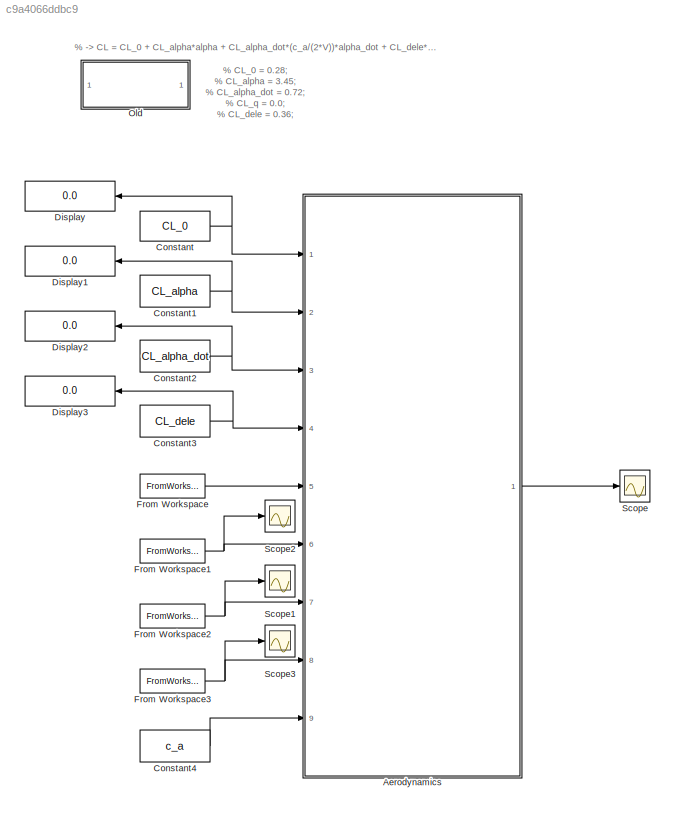
MODEL slx_c9a4066ddbc9
KIND model
CONFIG AbsTol = auto
CONFIG FixedStep = 0.01
CONFIG MaxStep = auto
CONFIG MinStep = auto
CONFIG RelTol = 1e-3
CONFIG SampleTimeConstraint = Unconstrained
CONFIG Solver = ode4
CONFIG SolverMode = Auto
CONFIG SolverName = ode4
CONFIG StartTime = 0.0
CONFIG StopTime = 10.0
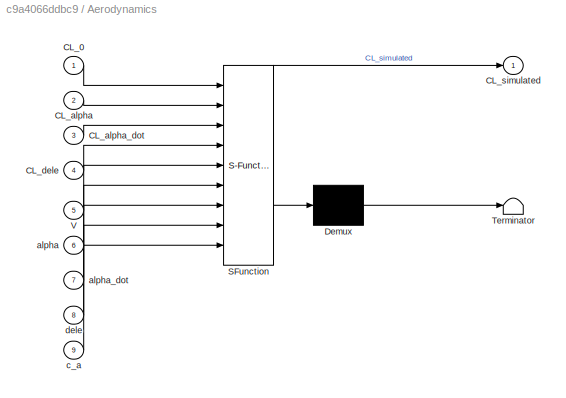
BLOCK [SubSystem] Aerodynamics
  ErrorFcn = Stateflow.Translate.translate
  PermitHierarchicalResolution = ExplicitOnly
  Ports = [9, 1]
  RequestExecContextInheritance = off
  SFBlockType = MATLAB Function
  TreatAsAtomicUnit = on
  Variant = off
BLOCK [Demux] Aerodynamics/ Demux 
  Outputs = 1
  Ports = [1, 1]
BLOCK [S-Function] Aerodynamics/ SFunction 
  EnableBusSupport = on
  FunctionName = sf_sfun
  PortCounts = [9 2]
  Ports = [9, 2]
  SFunctionDeploymentMode = off
  Tag = Stateflow S-Function Parameter_estimation_using_simulink 2
BLOCK [Terminator] Aerodynamics/ Terminator 
BLOCK [Inport] Aerodynamics/CL_0
  IconDisplay = Port number
BLOCK [Inport] Aerodynamics/CL_alpha
  IconDisplay = Port number
  Port = 2
BLOCK [Inport] Aerodynamics/CL_alpha_dot
  IconDisplay = Port number
  Port = 3
BLOCK [Inport] Aerodynamics/CL_dele
  IconDisplay = Port number
  Port = 4
BLOCK [Outport] Aerodynamics/CL_simulated
  IconDisplay = Port number
BLOCK [Inport] Aerodynamics/V
  IconDisplay = Port number
  Port = 5
BLOCK [Inport] Aerodynamics/alpha
  IconDisplay = Port number
  Port = 6
BLOCK [Inport] Aerodynamics/alpha_dot
  IconDisplay = Port number
  Port = 7
BLOCK [Inport] Aerodynamics/c_a
  IconDisplay = Port number
  Port = 9
BLOCK [Inport] Aerodynamics/dele
  IconDisplay = Port number
  Port = 8
BLOCK [Constant] Constant
  Value = CL_0
BLOCK [Constant] Constant1
  Value = CL_alpha
BLOCK [Constant] Constant2
  Value = CL_alpha_dot
BLOCK [Constant] Constant3
  Value = CL_dele
BLOCK [Constant] Constant4
  Value = c_a
BLOCK [Display] Display
  Decimation = 1
  Ports = [1]
BLOCK [Display] Display1
  Decimation = 1
  Ports = [1]
BLOCK [Display] Display2
  Decimation = 1
  Ports = [1]
BLOCK [Display] Display3
  Decimation = 1
  Ports = [1]
BLOCK [FromWorkspace] From Workspace
  SampleTime = 0
  VariableName = V_sim
  ZeroCross = on
BLOCK [FromWorkspace] From Workspace1
  SampleTime = 0
  VariableName = alpha_rad_sim
  ZeroCross = on
BLOCK [FromWorkspace] From Workspace2
  SampleTime = 0
  VariableName = alpha_dot_sim
  ZeroCross = on
BLOCK [FromWorkspace] From Workspace3
  SampleTime = 0
  VariableName = dele_sim
  ZeroCross = on
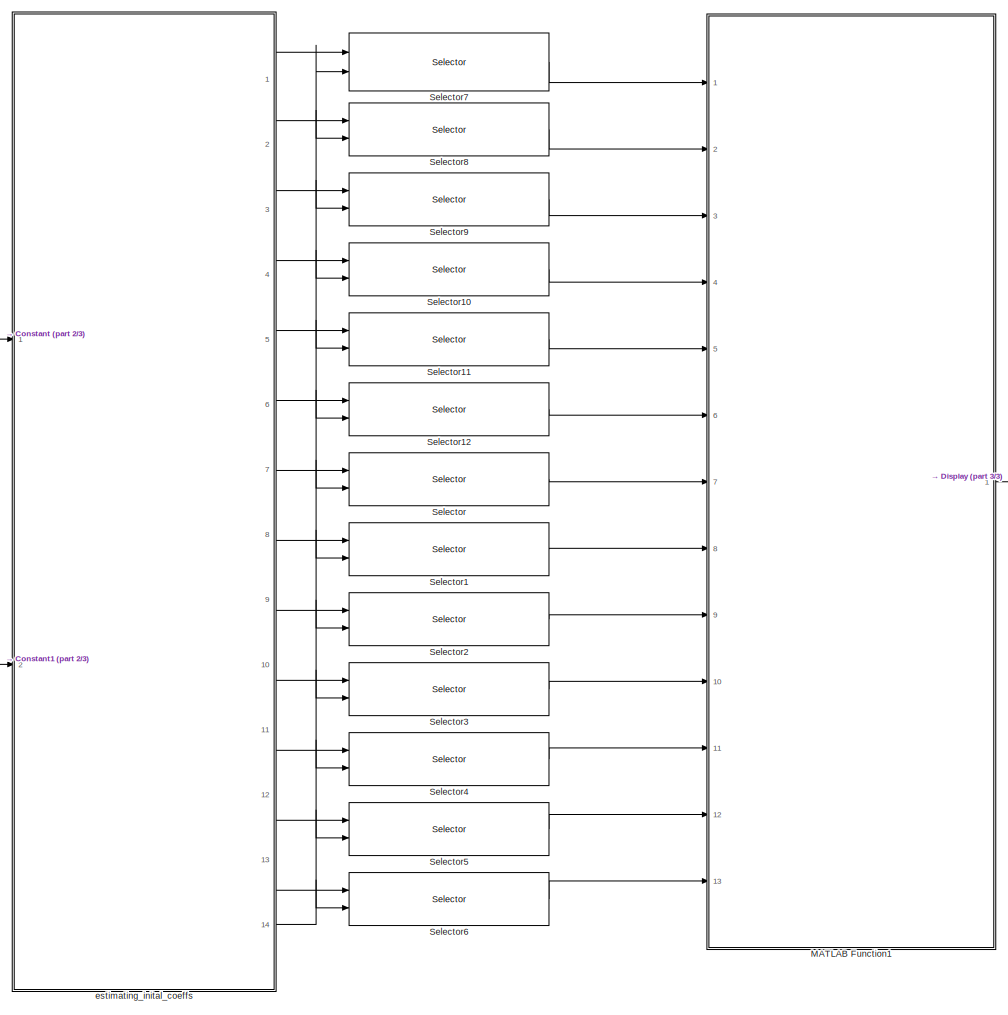
[diagram: Old - part 1/3, center side, full height]
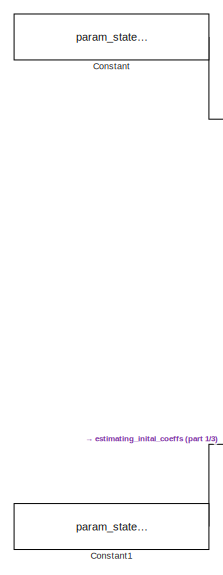
[diagram: Old - part 2/3, middle left region]
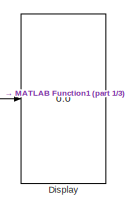
[diagram: Old - part 3/3, middle right region]
BLOCK [SubSystem] Old
  Commented = on
  Ports = []
  RequestExecContextInheritance = off
  Variant = off
BLOCK [Constant] Old/Constant
  Value = param_states.Data
  VectorParams1D = off
BLOCK [Constant] Old/Constant1
  Value = param_states.Time
  VectorParams1D = off
BLOCK [Display] Old/Display
  Decimation = 1
  Ports = [1]
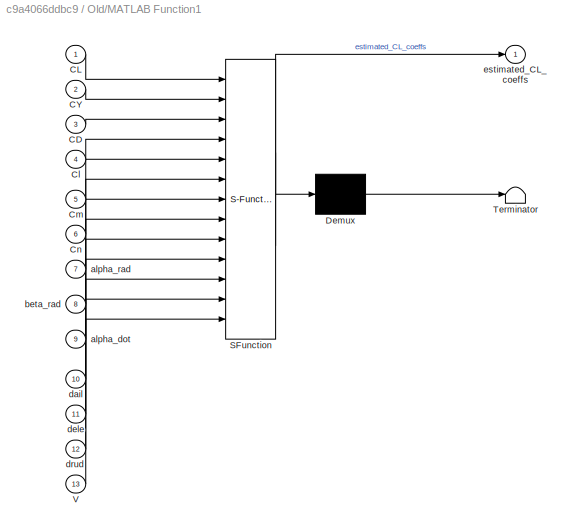
BLOCK [SubSystem] Old/MATLAB Function1
  Commented = on
  ErrorFcn = Stateflow.Translate.translate
  PermitHierarchicalResolution = ExplicitOnly
  Ports = [13, 1]
  RequestExecContextInheritance = off
  SFBlockType = MATLAB Function
  TreatAsAtomicUnit = on
  Variant = off
BLOCK [Demux] Old/MATLAB Function1/ Demux 
  Outputs = 1
  Ports = [1, 1]
BLOCK [S-Function] Old/MATLAB Function1/ SFunction 
  EnableBusSupport = on
  FunctionName = sf_sfun
  PortCounts = [13 2]
  Ports = [13, 2]
  SFunctionDeploymentMode = off
  Tag = Stateflow S-Function Parameter_estimation_using_simulink 3
BLOCK [Terminator] Old/MATLAB Function1/ Terminator 
BLOCK [Inport] Old/MATLAB Function1/CD
  IconDisplay = Port number
  Port = 3
BLOCK [Inport] Old/MATLAB Function1/CL
  IconDisplay = Port number
BLOCK [Inport] Old/MATLAB Function1/CY
  IconDisplay = Port number
  Port = 2
BLOCK [Inport] Old/MATLAB Function1/Cl
  IconDisplay = Port number
  Port = 4
BLOCK [Inport] Old/MATLAB Function1/Cm
  IconDisplay = Port number
  Port = 5
BLOCK [Inport] Old/MATLAB Function1/Cn
  IconDisplay = Port number
  Port = 6
BLOCK [Inport] Old/MATLAB Function1/V
  IconDisplay = Port number
  Port = 13
BLOCK [Inport] Old/MATLAB Function1/alpha_dot
  IconDisplay = Port number
  Port = 9
BLOCK [Inport] Old/MATLAB Function1/alpha_rad
  IconDisplay = Port number
  Port = 7
BLOCK [Inport] Old/MATLAB Function1/beta_rad
  IconDisplay = Port number
  Port = 8
BLOCK [Inport] Old/MATLAB Function1/dail
  IconDisplay = Port number
  Port = 10
BLOCK [Inport] Old/MATLAB Function1/dele
  IconDisplay = Port number
  Port = 11
BLOCK [Inport] Old/MATLAB Function1/drud
  IconDisplay = Port number
  Port = 12
BLOCK [Outport] Old/MATLAB Function1/estimated_CL_coeffs
  IconDisplay = Port number
BLOCK [Selector] Old/Selector
  Commented = on
  IndexOptions = Index vector (port)
  Indices = [1 3]
  InputPortWidth = 3
  OutputSizes = 1
  Ports = [2, 1]
BLOCK [Selector] Old/Selector1
  Commented = on
  IndexOptions = Index vector (port)
  Indices = [1 3]
  InputPortWidth = 3
  OutputSizes = 1
  Ports = [2, 1]
BLOCK [Selector] Old/Selector10
  Commented = on
  IndexOptions = Index vector (port)
  Indices = [1 3]
  InputPortWidth = 3
  OutputSizes = 1
  Ports = [2, 1]
BLOCK [Selector] Old/Selector11
  Commented = on
  IndexOptions = Index vector (port)
  Indices = [1 3]
  InputPortWidth = 3
  OutputSizes = 1
  Ports = [2, 1]
BLOCK [Selector] Old/Selector12
  Commented = on
  IndexOptions = Index vector (port)
  Indices = [1 3]
  InputPortWidth = 3
  OutputSizes = 1
  Ports = [2, 1]
BLOCK [Selector] Old/Selector2
  Commented = on
  IndexOptions = Index vector (port)
  Indices = [1 3]
  InputPortWidth = 3
  OutputSizes = 1
  Ports = [2, 1]
BLOCK [Selector] Old/Selector3
  Commented = on
  IndexOptions = Index vector (port)
  Indices = [1 3]
  InputPortWidth = 3
  OutputSizes = 1
  Ports = [2, 1]
BLOCK [Selector] Old/Selector4
  Commented = on
  IndexOptions = Index vector (port)
  Indices = [1 3]
  InputPortWidth = 3
  OutputSizes = 1
  Ports = [2, 1]
BLOCK [Selector] Old/Selector5
  Commented = on
  IndexOptions = Index vector (port)
  Indices = [1 3]
  InputPortWidth = 3
  OutputSizes = 1
  Ports = [2, 1]
BLOCK [Selector] Old/Selector6
  Commented = on
  IndexOptions = Index vector (port)
  Indices = [1 3]
  InputPortWidth = 3
  OutputSizes = 1
  Ports = [2, 1]
BLOCK [Selector] Old/Selector7
  IndexOptions = Index vector (port)
  Indices = [1:3]
  OutputSizes = 1
  Ports = [2, 1]
BLOCK [Selector] Old/Selector8
  Commented = on
  IndexOptions = Index vector (port)
  Indices = [1 3]
  InputPortWidth = 3
  OutputSizes = 1
  Ports = [2, 1]
BLOCK [Selector] Old/Selector9
  Commented = on
  IndexOptions = Index vector (port)
  Indices = [1 3]
  InputPortWidth = 3
  OutputSizes = 1
  Ports = [2, 1]
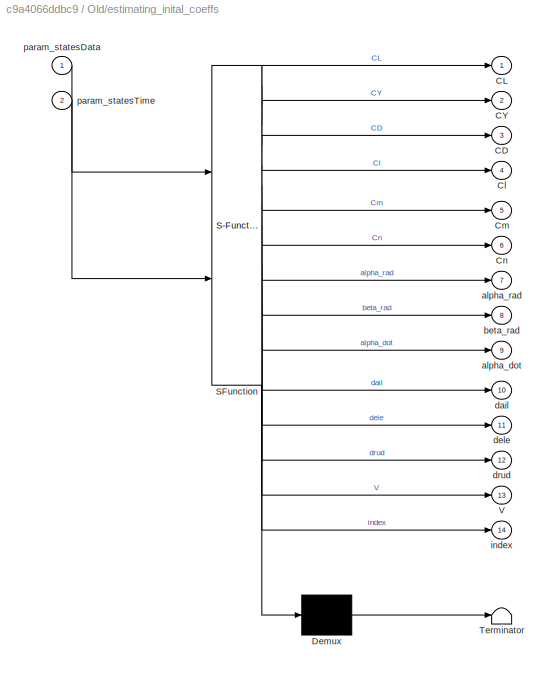
BLOCK [SubSystem] Old/estimating_inital_coeffs
  ErrorFcn = Stateflow.Translate.translate
  PermitHierarchicalResolution = ExplicitOnly
  Ports = [2, 14]
  RequestExecContextInheritance = off
  SFBlockType = MATLAB Function
  TreatAsAtomicUnit = on
  Variant = off
BLOCK [Demux] Old/estimating_inital_coeffs/ Demux 
  Outputs = 1
  Ports = [1, 1]
BLOCK [S-Function] Old/estimating_inital_coeffs/ SFunction 
  EnableBusSupport = on
  FunctionName = sf_sfun
  PortCounts = [2 15]
  Ports = [2, 15]
  SFunctionDeploymentMode = off
  Tag = Stateflow S-Function Parameter_estimation_using_simulink 1
BLOCK [Terminator] Old/estimating_inital_coeffs/ Terminator 
BLOCK [Outport] Old/estimating_inital_coeffs/CD
  IconDisplay = Port number
  Port = 3
BLOCK [Outport] Old/estimating_inital_coeffs/CL
  IconDisplay = Port number
BLOCK [Outport] Old/estimating_inital_coeffs/CY
  IconDisplay = Port number
  Port = 2
BLOCK [Outport] Old/estimating_inital_coeffs/Cl
  IconDisplay = Port number
  Port = 4
BLOCK [Outport] Old/estimating_inital_coeffs/Cm
  IconDisplay = Port number
  Port = 5
BLOCK [Outport] Old/estimating_inital_coeffs/Cn
  IconDisplay = Port number
  Port = 6
BLOCK [Outport] Old/estimating_inital_coeffs/V
  IconDisplay = Port number
  Port = 13
BLOCK [Outport] Old/estimating_inital_coeffs/alpha_dot
  IconDisplay = Port number
  Port = 9
BLOCK [Outport] Old/estimating_inital_coeffs/alpha_rad
  IconDisplay = Port number
  Port = 7
BLOCK [Outport] Old/estimating_inital_coeffs/beta_rad
  IconDisplay = Port number
  Port = 8
BLOCK [Outport] Old/estimating_inital_coeffs/dail
  IconDisplay = Port number
  Port = 10
BLOCK [Outport] Old/estimating_inital_coeffs/dele
  IconDisplay = Port number
  Port = 11
BLOCK [Outport] Old/estimating_inital_coeffs/drud
  IconDisplay = Port number
  Port = 12
BLOCK [Outport] Old/estimating_inital_coeffs/index
  IconDisplay = Port number
  Port = 14
BLOCK [Inport] Old/estimating_inital_coeffs/param_statesData
  IconDisplay = Port number
BLOCK [Inport] Old/estimating_inital_coeffs/param_statesTime
  IconDisplay = Port number
  Port = 2
BLOCK [Scope] Scope
  Ports = [1]
  ScopeSpecificationString = Simulink.scopes.TimeScopeBlockCfg('CurrentConfiguration', extmgr.ConfigurationSet(extmgr.Configuration('Core','General UI',true),extmgr.Configuration('Core','Source UI',true),extmgr.Configuration('Sources','WiredSimulink',true),extmgr.Configuration('Visuals','Time Domain',true,'SerializedDisplays',{struct('MinYLimReal','0.08274','MaxYLimReal','0.6185','YLabelReal','','MinYLimMag','0.08274','MaxYLi...<+1356ch>
BLOCK [Scope] Scope1
  Ports = [1]
  ScopeSpecificationString = Simulink.scopes.TimeScopeBlockCfg('CurrentConfiguration', extmgr.ConfigurationSet(extmgr.Configuration('Core','General UI',true),extmgr.Configuration('Core','Source UI',true),extmgr.Configuration('Sources','WiredSimulink',true,'DataLoggingVariableName','ScopeData1'),extmgr.Configuration('Visuals','Time Domain',true,'SerializedDisplays',{struct('MinYLimReal','-0.83108','MaxYLimReal','0.63301','YLab...<+1404ch>
BLOCK [Scope] Scope2
  Ports = [1]
  ScopeSpecificationString = Simulink.scopes.TimeScopeBlockCfg('CurrentConfiguration', extmgr.ConfigurationSet(extmgr.Configuration('Core','General UI',true),extmgr.Configuration('Core','Source UI',true),extmgr.Configuration('Sources','WiredSimulink',true,'DataLoggingVariableName','ScopeData2'),extmgr.Configuration('Visuals','Time Domain',true,'SerializedDisplays',{struct('MinYLimReal','-0.05461','MaxYLimReal','0.09644','YLab...<+1404ch>
BLOCK [Scope] Scope3
  Ports = [1]
  ScopeSpecificationString = Simulink.scopes.TimeScopeBlockCfg('CurrentConfiguration', extmgr.ConfigurationSet(extmgr.Configuration('Core','General UI',true),extmgr.Configuration('Core','Source UI',true),extmgr.Configuration('Sources','WiredSimulink',true,'DataLoggingVariableName','ScopeData3'),extmgr.Configuration('Visuals','Time Domain',true,'SerializedDisplays',{struct('MinYLimReal','0.09143','MaxYLimReal','0.61117','YLabe...<+1399ch>
ANNOTATION (root): % -> CL = CL_0 + CL_alpha*alpha + CL_alpha_dot*(c_a/(2*V))*alpha_dot + CL_dele*dele % CL_0 = 0.28; % CL_alpha = 3.45; % CL_alpha_dot = 0.72; % CL_q = 0.0; % CL_dele = 0.36;
LINE Aerodynamics:1 -> Scope:1
NET Constant1:1 -> Aerodynamics:2, Display1:1
NET Constant2:1 -> Aerodynamics:3, Display2:1
NET Constant3:1 -> Aerodynamics:4, Display3:1
LINE Constant4:1 -> Aerodynamics:9
NET Constant:1 -> Aerodynamics:1, Display:1
NET From Workspace1:1 -> Aerodynamics:6, Scope2:1
NET From Workspace2:1 -> Aerodynamics:7, Scope1:1
NET From Workspace3:1 -> Aerodynamics:8, Scope3:1
LINE From Workspace:1 -> Aerodynamics:5
LINE Old/Constant1:1 -> Old/estimating_inital_coeffs:2
LINE Old/Constant:1 -> Old/estimating_inital_coeffs:1
LINE Old/MATLAB Function1:1 -> Old/Display:1
LINE Old/Selector10:1 -> Old/MATLAB Function1:4
LINE Old/Selector11:1 -> Old/MATLAB Function1:5
LINE Old/Selector12:1 -> Old/MATLAB Function1:6
LINE Old/Selector1:1 -> Old/MATLAB Function1:8
LINE Old/Selector2:1 -> Old/MATLAB Function1:9
LINE Old/Selector3:1 -> Old/MATLAB Function1:10
LINE Old/Selector4:1 -> Old/MATLAB Function1:11
LINE Old/Selector5:1 -> Old/MATLAB Function1:12
LINE Old/Selector6:1 -> Old/MATLAB Function1:13
LINE Old/Selector7:1 -> Old/MATLAB Function1:1
LINE Old/Selector8:1 -> Old/MATLAB Function1:2
LINE Old/Selector9:1 -> Old/MATLAB Function1:3
LINE Old/Selector:1 -> Old/MATLAB Function1:7
LINE Old/estimating_inital_coeffs:1 -> Old/Selector7:1
LINE Old/estimating_inital_coeffs:10 -> Old/Selector3:1
LINE Old/estimating_inital_coeffs:11 -> Old/Selector4:1
LINE Old/estimating_inital_coeffs:12 -> Old/Selector5:1
LINE Old/estimating_inital_coeffs:13 -> Old/Selector6:1
NET Old/estimating_inital_coeffs:14 -> Old/Selector10:2, Old/Selector11:2, Old/Selector12:2, Old/Selector1:2, Old/Selector2:2, Old/Selector3:2, Old/Selector4:2, Old/Selector5:2, Old/Selector6:2, Old/Selector7:2, Old/Selector8:2, Old/Selector9:2, Old/Selector:2
LINE Old/estimating_inital_coeffs:2 -> Old/Selector8:1
LINE Old/estimating_inital_coeffs:3 -> Old/Selector9:1
LINE Old/estimating_inital_coeffs:4 -> Old/Selector10:1
LINE Old/estimating_inital_coeffs:5 -> Old/Selector11:1
LINE Old/estimating_inital_coeffs:6 -> Old/Selector12:1
LINE Old/estimating_inital_coeffs:7 -> Old/Selector:1
LINE Old/estimating_inital_coeffs:8 -> Old/Selector1:1
LINE Old/estimating_inital_coeffs:9 -> Old/Selector2:1
note: NET lines group one-source signal fan-out (src -> all destinations, sorted); 1:1 wires keep LINE
CHART Old/estimating_inital_coeffs states=1 transitions=1
  STATE_LABEL 'eML_blk_kernel()'
  STATE_LABEL "SCRIPT:\nfunction [CL,CY,CD,Cl,Cm,Cn,alpha_rad,beta_rad,alpha_dot,dail,dele,drud,V,index]= estimating_initial_coeffs(param_statesData,param_statesTime)\n\n%param_file_list = dir('*param_states.mat');\n\n%i = 3; % For file: '03_short_period_phugoid_spherical_constrained_0_8_param_states'\n%filename = param_file_list(i).name;\n%load(filename);\n\nfilename = '03_short_period_phugoid_spherical_constrained_0_8_...<+1930ch>"
CHART Aerodynamics states=1 transitions=1
  STATE_LABEL 'eML_blk_kernel()'
  STATE_LABEL 'SCRIPT:\nfunction CL_simulated = fcn(CL_0, CL_alpha, CL_alpha_dot, CL_dele, V, alpha, alpha_dot, dele, c_a)\n\nCL_simulated = CL_0 + CL_alpha*alpha + CL_alpha_dot*(c_a/(2*V))*alpha_dot + CL_dele*dele;'
CHART Old/MATLAB Function1 states=1 transitions=1
  STATE_LABEL 'eML_blk_kernel()'
  STATE_LABEL 'SCRIPT:\nfunction estimated_CL_coeffs = fcn(CL,CY,CD,Cl,Cm,Cn,alpha_rad,beta_rad,alpha_dot,dail,dele,drud,V)\n\n% -> CL = CL_0 + CL_alpha*alpha + CL_alpha_dot*(c_a/(2*V))*alpha_dot + CL_dele*dele\n% CL0             = 0.28;\n% CL_alpha        = 3.45;\n% CL_alpha_dot    = 0.72;\n% CL_q            = 0.0;\n% CL_dele         = 0.36;\n\n% Using equation error method to estimate coefficients\nX_CL = [ ones(length(a...<+99ch>'
